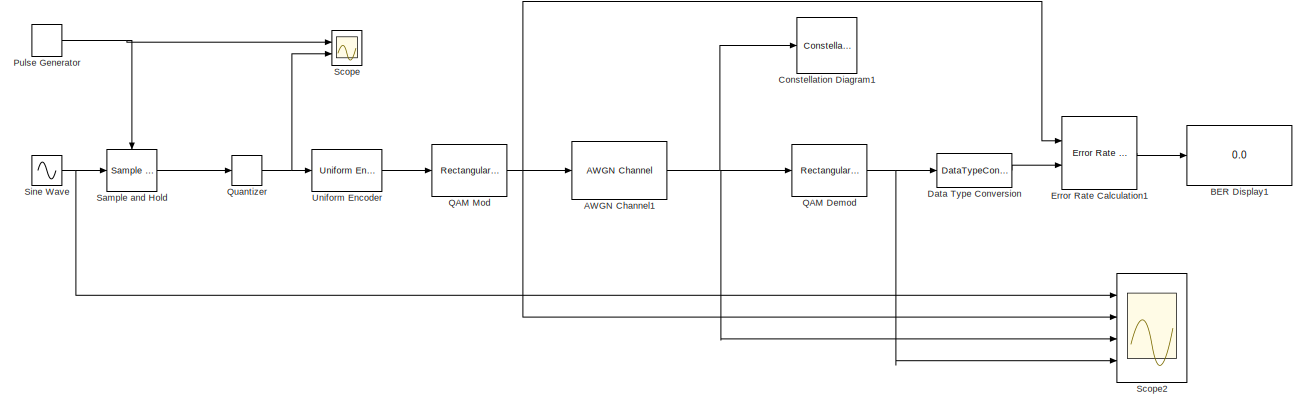
[diagram: root canvas - part 1/3, top center region]
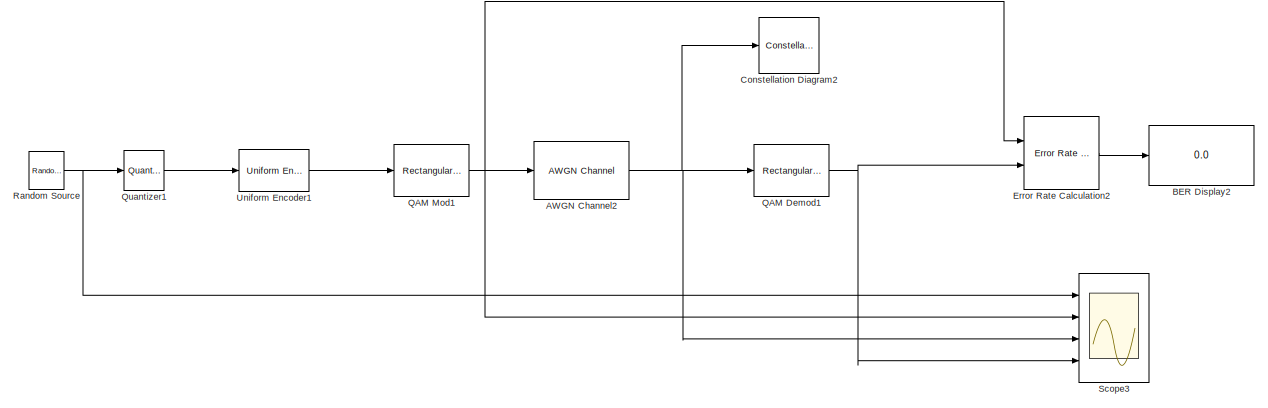
[diagram: root canvas - part 2/3, middle right region]
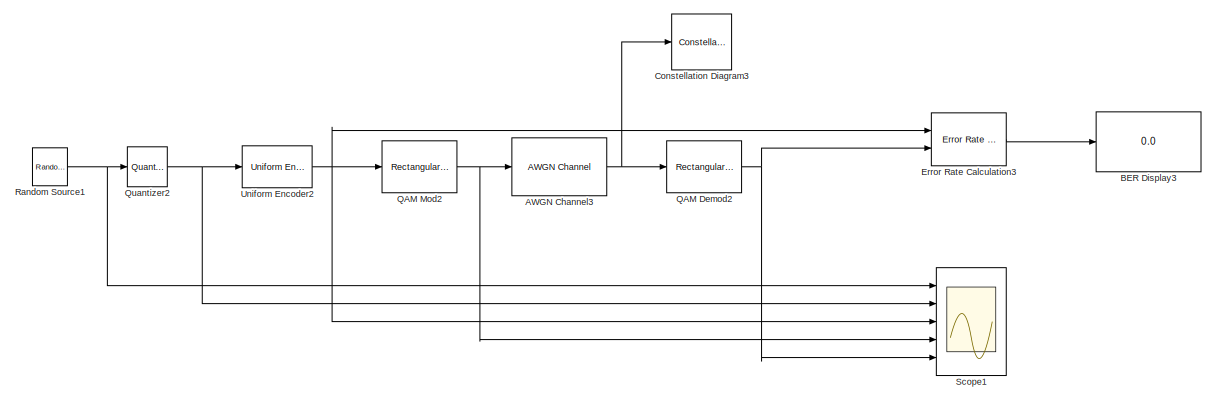
[diagram: root canvas - part 3/3, bottom center region]
MODEL slx_6399b3dc8edf
KIND model
CONFIG AbsTol = auto
CONFIG EnableMultiTasking = off
CONFIG FixedStep = auto
CONFIG MaxStep = auto
CONFIG MinStep = auto
CONFIG RelTol = 1e-3
CONFIG SampleTimeConstraint = Unconstrained
CONFIG SolverName = VariableStepAuto
CONFIG StartTime = 0.0
CONFIG StopTime = 10.0
BLOCK [Reference] AWGN Channel1  REF=commchan3/AWGN
Channel
  Commented = on
  Ports = [1, 1]
  SourceBlock = commchan3/AWGN\nChannel
  SourceProductBaseCode = CM
  SourceType = AWGN Channel
  UserDataPersistent = on
BLOCK [Reference] AWGN Channel2  REF=commchan3/AWGN
Channel
  Commented = on
  Ports = [1, 1]
  SourceBlock = commchan3/AWGN\nChannel
  SourceProductBaseCode = CM
  SourceType = AWGN Channel
  UserDataPersistent = on
BLOCK [Reference] AWGN Channel3  REF=commchan3/AWGN
Channel
  Ports = [1, 1]
  SourceBlock = commchan3/AWGN\nChannel
  SourceProductBaseCode = CM
  SourceType = AWGN Channel
  UserDataPersistent = on
BLOCK [Display] BER Display1
  Commented = on
  Decimation = 1
  Ports = [1]
BLOCK [Display] BER Display2
  Commented = on
  Decimation = 1
  Ports = [1]
BLOCK [Display] BER Display3
  Decimation = 1
  Ports = [1]
BLOCK [ConstellationDiagram] Constellation Diagram1
  Commented = on
  Ports = [1]
  ScopeSpecificationString = comm.scopes.ConstellationDiagramBlockCfg('CurrentConfiguration', extmgr.ConfigurationSet(extmgr.Configuration('Core','General UI',true),extmgr.Configuration('Core','Source UI',true),extmgr.Configuration('Sources','WiredSimulink',true),extmgr.Configuration('Visuals','Constellation',true,'MinYLim','-4.1864','MaxYLim','6.1768','MinXLim','-4.1864','MaxXLim','6.1768','LineProperties',struct('DisplayNam...<+896ch>
BLOCK [ConstellationDiagram] Constellation Diagram2
  Commented = on
  Ports = [1]
  ScopeSpecificationString = comm.scopes.ConstellationDiagramBlockCfg('CurrentConfiguration', extmgr.ConfigurationSet(extmgr.Configuration('Core','General UI',true),extmgr.Configuration('Core','Source UI',true),extmgr.Configuration('Sources','WiredSimulink',true),extmgr.Configuration('Visuals','Constellation',true,'MinYLim','-4.1864','MaxYLim','6.1768','MinXLim','-4.1864','MaxXLim','6.1768','LineProperties',struct('DisplayNam...<+896ch>
BLOCK [ConstellationDiagram] Constellation Diagram3
  Ports = [1]
  ScopeSpecificationString = comm.scopes.ConstellationDiagramBlockCfg('CurrentConfiguration', extmgr.ConfigurationSet(extmgr.Configuration('Core','General UI',true),extmgr.Configuration('Core','Source UI',true),extmgr.Configuration('Sources','WiredSimulink',true),extmgr.Configuration('Visuals','Constellation',true,'LineProperties',struct('DisplayName','','Color',[1 1 0.0666666666666667],'LineStyle','none','LineWidth',0.5,'Mar...<+679ch>
BLOCK [DataTypeConversion] Data Type Conversion
  Commented = on
  OutDataTypeStr = uint8
  RndMeth = Floor
  SaturateOnIntegerOverflow = off
BLOCK [Reference] Error Rate Calculation1  REF=commsink2/Error Rate
Calculation
  Commented = on
  Ports = [2, 1]
  SourceBlock = commsink2/Error Rate\nCalculation
  SourceProductBaseCode = CM
  SourceType = Error Rate Calculation
BLOCK [Reference] Error Rate Calculation2  REF=commsink2/Error Rate
Calculation
  Commented = on
  Ports = [2, 1]
  SourceBlock = commsink2/Error Rate\nCalculation
  SourceProductBaseCode = CM
  SourceType = Error Rate Calculation
BLOCK [Reference] Error Rate Calculation3  REF=commsink2/Error Rate
Calculation
  Ports = [2, 1]
  SourceBlock = commsink2/Error Rate\nCalculation
  SourceProductBaseCode = CM
  SourceType = Error Rate Calculation
BLOCK [DiscretePulseGenerator] Pulse Generator
  Commented = on
  Period = 1000
  Ports = [0, 1]
  PulseWidth = 5
BLOCK [Reference] QAM Demod  REF=commdigbbndam3/Rectangular QAM
Demodulator
Baseband
  Commented = on
  Ports = [1, 1]
  SourceBlock = commdigbbndam3/Rectangular QAM\nDemodulator\nBaseband
  SourceProductBaseCode = CM
  SourceType = Rectangular QAM Demodulator Baseband
BLOCK [Reference] QAM Demod1  REF=commdigbbndam3/Rectangular QAM
Demodulator
Baseband
  Commented = on
  Ports = [1, 1]
  SourceBlock = commdigbbndam3/Rectangular QAM\nDemodulator\nBaseband
  SourceProductBaseCode = CM
  SourceType = Rectangular QAM Demodulator Baseband
BLOCK [Reference] QAM Demod2  REF=commdigbbndam3/Rectangular QAM
Demodulator
Baseband
  Ports = [1, 1]
  SourceBlock = commdigbbndam3/Rectangular QAM\nDemodulator\nBaseband
  SourceProductBaseCode = CM
  SourceType = Rectangular QAM Demodulator Baseband
BLOCK [Reference] QAM Mod  REF=commdigbbndam3/Rectangular QAM
Modulator
Baseband
  Commented = on
  Ports = [1, 1]
  SourceBlock = commdigbbndam3/Rectangular QAM\nModulator\nBaseband
  SourceProductBaseCode = CM
  SourceType = Rectangular QAM Modulator Baseband
BLOCK [Reference] QAM Mod1  REF=commdigbbndam3/Rectangular QAM
Modulator
Baseband
  Commented = on
  Ports = [1, 1]
  SourceBlock = commdigbbndam3/Rectangular QAM\nModulator\nBaseband
  SourceProductBaseCode = CM
  SourceType = Rectangular QAM Modulator Baseband
BLOCK [Reference] QAM Mod2  REF=commdigbbndam3/Rectangular QAM
Modulator
Baseband
  Ports = [1, 1]
  SourceBlock = commdigbbndam3/Rectangular QAM\nModulator\nBaseband
  SourceProductBaseCode = CM
  SourceType = Rectangular QAM Modulator Baseband
BLOCK [Quantizer] Quantizer
  Commented = on
  LinearizeAsGain = off
  QuantizationInterval = 0.25
BLOCK [Quantizer] Quantizer1
  Commented = on
  LinearizeAsGain = off
  QuantizationInterval = 0.25
BLOCK [Quantizer] Quantizer2
  LinearizeAsGain = off
  QuantizationInterval = 0.25
BLOCK [Reference] Random Source  REF=dspsrcs4/Random
Source
  Commented = on
  Ports = [0, 1]
  SourceBlock = dspsrcs4/Random\nSource
  SourceProductBaseCode = DS
  SourceType = Random Source
  UserDataPersistent = on
BLOCK [Reference] Random Source1  REF=dspsrcs4/Random
Source
  Ports = [0, 1]
  SourceBlock = dspsrcs4/Random\nSource
  SourceProductBaseCode = DS
  SourceType = Random Source
  UserDataPersistent = on
BLOCK [Reference] Sample and Hold  REF=dspsigops/Sample
and Hold
  Commented = on
  Ports = [1, 1, 0, 1]
  SourceBlock = dspsigops/Sample\nand Hold
  SourceProductBaseCode = DS
  SourceType = Sample and Hold
BLOCK [Scope] Scope
  Commented = on
  Floating = off
  NumInputPorts = 2
  Ports = [2]
  ScopeSpecificationString = Simulink.scopes.TimeScopeBlockCfg('CurrentConfiguration', extmgr.ConfigurationSet(extmgr.Configuration('Core','General UI',true),extmgr.Configuration('Core','Source UI',true),extmgr.Configuration('Sources','WiredSimulink',true),extmgr.Configuration('Visuals','Time Domain',true,'SerializedDisplays',{struct('MinYLimReal','-0.125','MaxYLimReal','1.125','YLabelReal','','MinYLimMag','0.00000','MaxYLimM...<+2757ch>
BLOCK [Scope] Scope1
  Floating = off
  NumInputPorts = 5
  Ports = [5]
  ScopeSpecificationString = Simulink.scopes.TimeScopeBlockCfg('CurrentConfiguration', extmgr.ConfigurationSet(extmgr.Configuration('Core','General UI',true),extmgr.Configuration('Core','Source UI',true),extmgr.Configuration('Sources','WiredSimulink',true,'DataLoggingVariableName','ScopeData1'),extmgr.Configuration('Visuals','Time Domain',true,'SerializedDisplays',{struct('MinYLimReal','-0.09287','MaxYLimReal','1.08452','YLab...<+6268ch>
BLOCK [Scope] Scope2
  Commented = on
  Floating = off
  NumInputPorts = 4
  Ports = [4]
  ScopeSpecificationString = Simulink.scopes.TimeScopeBlockCfg('CurrentConfiguration', extmgr.ConfigurationSet(extmgr.Configuration('Core','General UI',true),extmgr.Configuration('Core','Source UI',true),extmgr.Configuration('Sources','WiredSimulink',true,'DataLoggingVariableName','ScopeData2'),extmgr.Configuration('Visuals','Time Domain',true,'SerializedDisplays',{struct('MinYLimReal','-0.09287','MaxYLimReal','1.08452','YLab...<+6268ch>
BLOCK [Scope] Scope3
  Commented = on
  Floating = off
  NumInputPorts = 4
  Ports = [4]
  ScopeSpecificationString = Simulink.scopes.TimeScopeBlockCfg('CurrentConfiguration', extmgr.ConfigurationSet(extmgr.Configuration('Core','General UI',true),extmgr.Configuration('Core','Source UI',true),extmgr.Configuration('Sources','WiredSimulink',true,'DataLoggingVariableName','ScopeData3'),extmgr.Configuration('Visuals','Time Domain',true,'SerializedDisplays',{struct('MinYLimReal','-0.09287','MaxYLimReal','1.08452','YLab...<+6268ch>
BLOCK [Sin] Sine Wave
  Amplitude = 10
  Commented = on
  Ports = [0, 1]
  SampleTime = 0
BLOCK [Reference] Uniform Encoder  REF=dspquant2/Uniform
Encoder
  Commented = on
  Ports = [1, 1]
  SourceBlock = dspquant2/Uniform\nEncoder
  SourceProductBaseCode = DS
  SourceType = Uniform Encoder
BLOCK [Reference] Uniform Encoder1  REF=dspquant2/Uniform
Encoder
  Commented = on
  Ports = [1, 1]
  SourceBlock = dspquant2/Uniform\nEncoder
  SourceProductBaseCode = DS
  SourceType = Uniform Encoder
BLOCK [Reference] Uniform Encoder2  REF=dspquant2/Uniform
Encoder
  Ports = [1, 1]
  SourceBlock = dspquant2/Uniform\nEncoder
  SourceProductBaseCode = DS
  SourceType = Uniform Encoder
NET AWGN Channel1:1 -> Constellation Diagram1:1, QAM Demod:1, Scope2:3
NET AWGN Channel2:1 -> Constellation Diagram2:1, QAM Demod1:1, Scope3:3
NET AWGN Channel3:1 -> Constellation Diagram3:1, QAM Demod2:1
LINE Data Type Conversion:1 -> Error Rate Calculation1:2
LINE Error Rate Calculation1:1 -> BER Display1:1
LINE Error Rate Calculation2:1 -> BER Display2:1
LINE Error Rate Calculation3:1 -> BER Display3:1
NET Pulse Generator:1 -> Sample and Hold:trigger, Scope:1
NET QAM Demod1:1 -> Error Rate Calculation2:2, Scope3:4
NET QAM Demod2:1 -> Error Rate Calculation3:2, Scope1:5
NET QAM Demod:1 -> Data Type Conversion:1, Scope2:4
NET QAM Mod1:1 -> AWGN Channel2:1, Error Rate Calculation2:1, Scope3:2
NET QAM Mod2:1 -> AWGN Channel3:1, Scope1:4
NET QAM Mod:1 -> AWGN Channel1:1, Error Rate Calculation1:1, Scope2:2
LINE Quantizer1:1 -> Uniform Encoder1:1
NET Quantizer2:1 -> Scope1:2, Uniform Encoder2:1
NET Quantizer:1 -> Scope:2, Uniform Encoder:1
NET Random Source1:1 -> Quantizer2:1, Scope1:1
NET Random Source:1 -> Quantizer1:1, Scope3:1
LINE Sample and Hold:1 -> Quantizer:1
NET Sine Wave:1 -> Sample and Hold:1, Scope2:1
LINE Uniform Encoder1:1 -> QAM Mod1:1
NET Uniform Encoder2:1 -> Error Rate Calculation3:1, QAM Mod2:1, Scope1:3
LINE Uniform Encoder:1 -> QAM Mod:1
note: NET lines group one-source signal fan-out (src -> all destinations, sorted); 1:1 wires keep LINE
